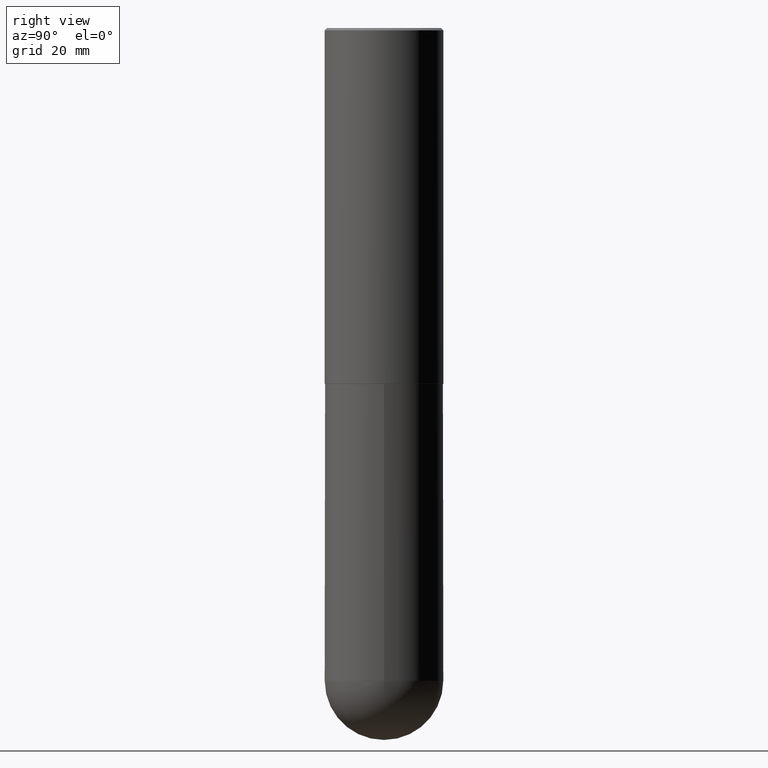
[diagram: clean part render]
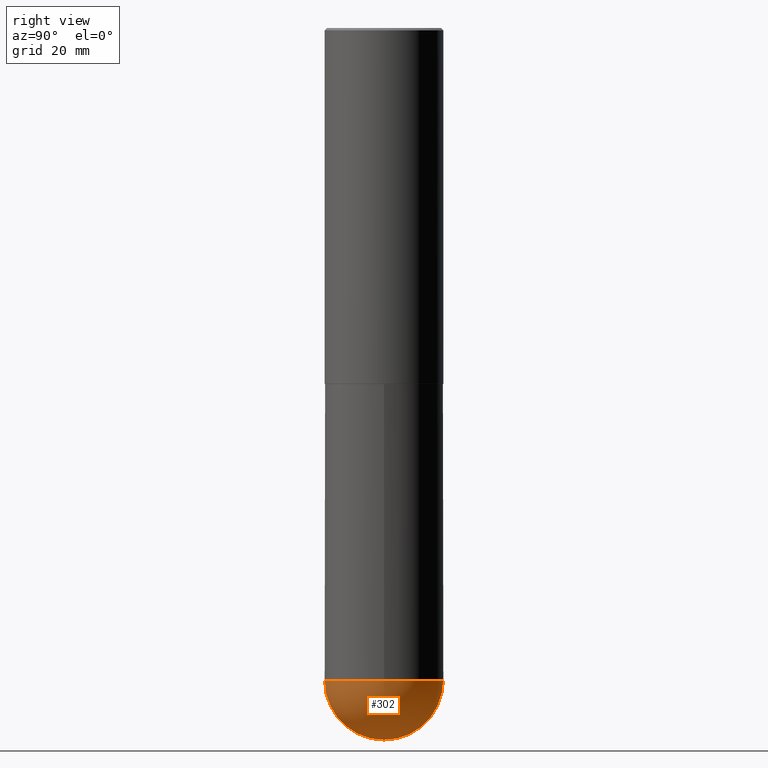
[diagram: same view with one face highlighted and labeled with its STEP entity id]
A machine part, right view. The second image highlights one B-rep face of the part: STEP entity #302.
In plain terms, the highlighted spherical surface has radius 12.7 mm.
Its self-contained STEP definition (entity closure, byte-faithful):
#6 = CIRCLE ( 'NONE', #272, 0.5000000000000005551 ) ;
#12 = VERTEX_POINT ( 'NONE', #65 ) ;
#13 = VERTEX_POINT ( 'NONE', #290 ) ;
#15 = ORIENTED_EDGE ( 'NONE', *, *, #150, .F. ) ;
#41 = CARTESIAN_POINT ( 'NONE',  ( 1.345007843401825128E-28, -1.920314736363730603E-14, -5.500000000000000888 ) ) ;
#47 = EDGE_CURVE ( 'NONE', #12, #13, #6, .T. ) ;
#56 = CARTESIAN_POINT ( 'NONE',  ( 1.311895865610436840E-28, -1.967732973177735475E-14, -5.500000000000000888 ) ) ;
#57 = DIRECTION ( 'NONE',  ( -7.105427357601000281E-15, -1.000000000000000000, 0.000000000000000000 ) ) ;
#59 = DIRECTION ( 'NONE',  ( -1.000000000000000000, 7.105427357601001070E-15, -4.926315508542082329E-29 ) ) ;
#61 = CIRCLE ( 'NONE', #310, 0.5000000000000000000 ) ;
#64 = DIRECTION ( 'NONE',  ( 1.000000000000000000, -6.982962677686265922E-15, 4.883557194083112340E-29 ) ) ;
#65 = CARTESIAN_POINT ( 'NONE',  ( 1.436307221642642309E-28, -2.139245423122024710E-14, -6.000000000000001776 ) ) ;
#82 = VERTEX_POINT ( 'NONE', #126 ) ;
#103 = SPHERICAL_SURFACE ( 'NONE', #297, 0.5000000000000005551 ) ;
#104 = CARTESIAN_POINT ( 'NONE',  ( 1.345007843401825128E-28, -1.920314736363730603E-14, -5.500000000000000888 ) ) ;
#126 = CARTESIAN_POINT ( 'NONE',  ( 0.5000000000000000000, -1.833027702892651007E-14, -5.500000000000000888 ) ) ;
#128 = FACE_OUTER_BOUND ( 'NONE', #394, .T. ) ;
#136 = ORIENTED_EDGE ( 'NONE', *, *, #168, .F. ) ;
#139 = DIRECTION ( 'NONE',  ( -2.445468806185136597E-29, 3.491481338843145583E-15, 1.000000000000000000 ) ) ;
#143 = VERTEX_POINT ( 'NONE', #390 ) ;
#147 = CIRCLE ( 'NONE', #182, 0.5000000000000000000 ) ;
#150 = EDGE_CURVE ( 'NONE', #82, #143, #61, .T. ) ;
#168 = EDGE_CURVE ( 'NONE', #13, #82, #147, .T. ) ;
#171 = DIRECTION ( 'NONE',  ( 1.000000000000000000, -6.982962677686270655E-15, 0.000000000000000000 ) ) ;
#182 = AXIS2_PLACEMENT_3D ( 'NONE', #41, #139, #171 ) ;
#190 = CARTESIAN_POINT ( 'NONE',  ( 1.311895865610436840E-28, -1.967732973177735475E-14, -5.500000000000000888 ) ) ;
#195 = DIRECTION ( 'NONE',  ( 6.982962677686265922E-15, 1.000000000000000000, 0.000000000000000000 ) ) ;
#229 = DIRECTION ( 'NONE',  ( 6.982962677686265922E-15, 1.000000000000000000, -4.370956789862816416E-15 ) ) ;
#248 = EDGE_CURVE ( 'NONE', #12, #143, #412, .T. ) ;
#272 = AXIS2_PLACEMENT_3D ( 'NONE', #340, #59, #57 ) ;
#290 = CARTESIAN_POINT ( 'NONE',  ( -3.552713678800369978E-15, -0.5000000000000196509, -5.499999999999999112 ) ) ;
#297 = AXIS2_PLACEMENT_3D ( 'NONE', #190, #380, #229 ) ;
#302 = ADVANCED_FACE ( 'NONE', ( #128 ), #103, .T. ) ;
#310 = AXIS2_PLACEMENT_3D ( 'NONE', #104, #313, #360 ) ;
#313 = DIRECTION ( 'NONE',  ( -2.445468806185136597E-29, 3.491481338843145583E-15, 1.000000000000000000 ) ) ;
#340 = CARTESIAN_POINT ( 'NONE',  ( 1.311895865610436840E-28, -1.967732973177735475E-14, -5.500000000000000888 ) ) ;
#360 = DIRECTION ( 'NONE',  ( 1.000000000000000000, -6.982962677686270655E-15, 0.000000000000000000 ) ) ;
#373 = AXIS2_PLACEMENT_3D ( 'NONE', #56, #64, #195 ) ;
#380 = DIRECTION ( 'NONE',  ( -1.000000000000000000, 6.982962677686265922E-15, -4.883557194083112901E-29 ) ) ;
#390 = CARTESIAN_POINT ( 'NONE',  ( 3.491481338843267462E-15, 0.4999999999999808487, -5.500000000000002665 ) ) ;
#394 = EDGE_LOOP ( 'NONE', ( #399, #403, #15, #136 ) ) ;
#399 = ORIENTED_EDGE ( 'NONE', *, *, #47, .F. ) ;
#403 = ORIENTED_EDGE ( 'NONE', *, *, #248, .T. ) ;
#412 = CIRCLE ( 'NONE', #373, 0.5000000000000005551 ) ;